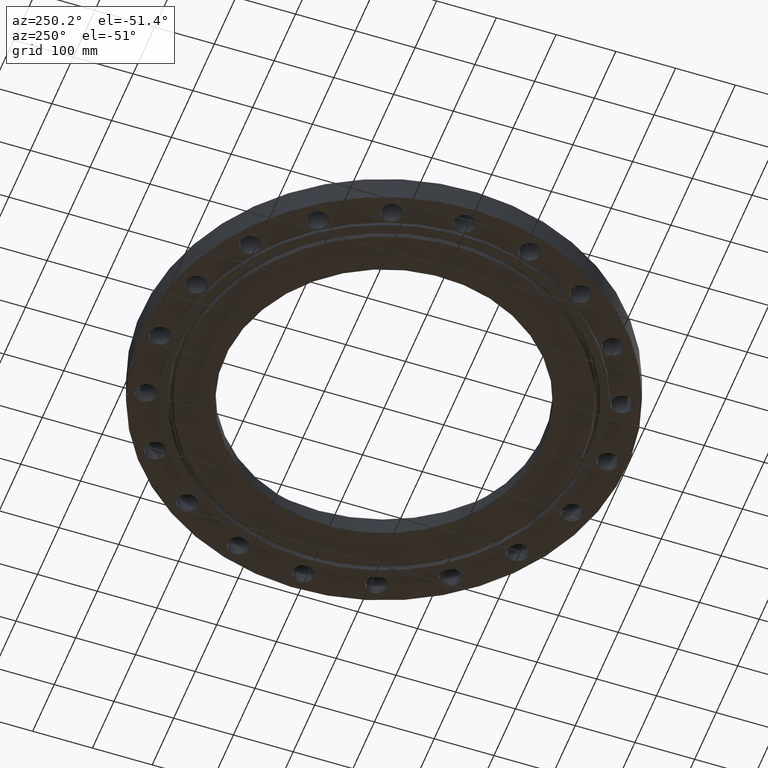
[diagram: clean part render]
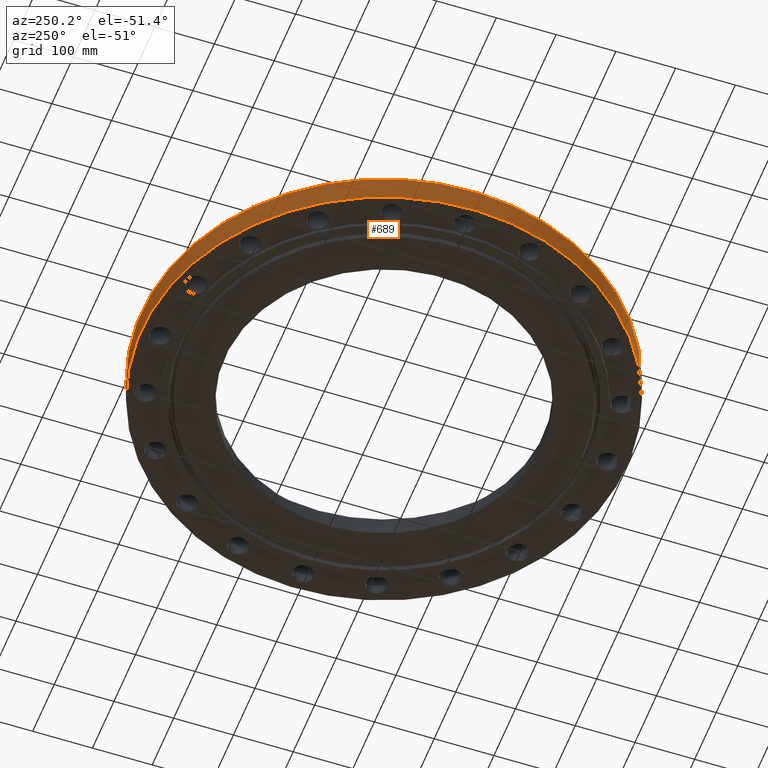
[diagram: same view with one face highlighted and labeled with its STEP entity id]
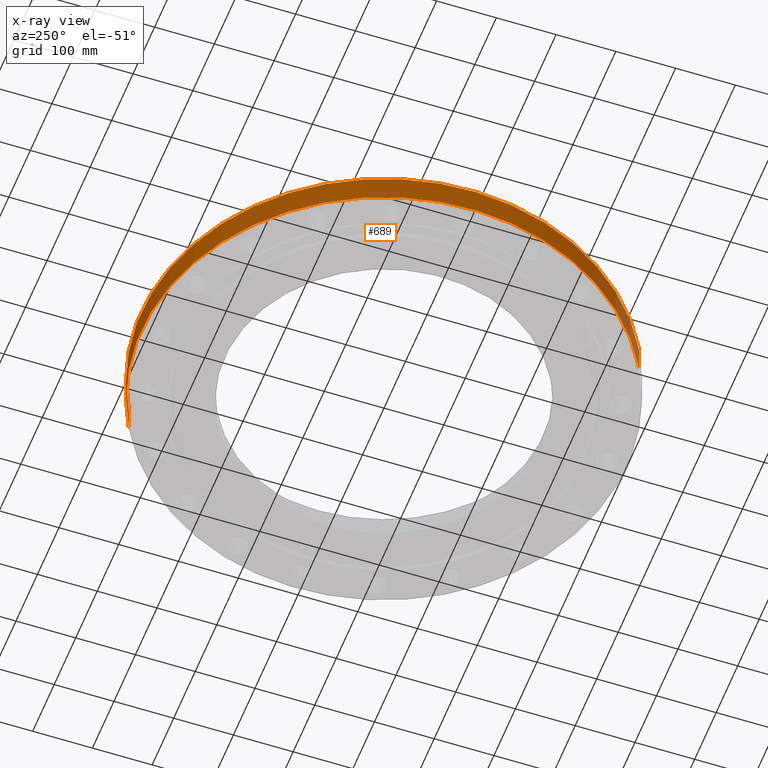
[diagram: x-ray of the same camera — body ghosted, the highlighted face saturated]
A machine part, auxiliary view. The second image highlights one B-rep face of the part: STEP entity #689.
The next image is the same camera in x-ray: the body ghosted, the highlighted face saturated — about 0% of this face is hidden behind the body in this view.
In plain terms, the highlighted cylindrical surface (partial cylindrical patch) has radius 406.4 mm, axis along (0, 0, -1).
Its self-contained STEP definition (entity closure, byte-faithful):
#278=AXIS2_PLACEMENT_3D('Circle Axis2P3D',#276,#277,$) ;
#662=AXIS2_PLACEMENT_3D('Cylinder Axis2P3D',#659,#660,#661) ;
#673=AXIS2_PLACEMENT_3D('Circle Axis2P3D',#671,#672,$) ;
#276=CARTESIAN_POINT('Axis2P3D Location',(0.,0.,0.)) ;
#280=CARTESIAN_POINT('Vertex',(-7.6708086177,-14.0413209903,1.67844740731E-015)) ;
#282=CARTESIAN_POINT('Vertex',(7.6708086177,14.0413209903,1.67844740731E-015)) ;
#659=CARTESIAN_POINT('Axis2P3D Location',(0.,0.,1.47000000001)) ;
#664=CARTESIAN_POINT('Line Origine',(-7.6708086177,-14.0413209903,0.905000000004)) ;
#668=CARTESIAN_POINT('Vertex',(-7.6708086177,-14.0413209903,1.81000000001)) ;
#671=CARTESIAN_POINT('Axis2P3D Location',(0.,0.,1.81000000001)) ;
#675=CARTESIAN_POINT('Vertex',(7.6708086177,14.0413209903,1.81000000001)) ;
#678=CARTESIAN_POINT('Line Origine',(7.6708086177,14.0413209903,0.905000000004)) ;
#277=DIRECTION('Axis2P3D Direction',(0.,0.,-0.0393700787402)) ;
#660=DIRECTION('Axis2P3D Direction',(0.,0.,-0.0393700787402)) ;
#661=DIRECTION('Axis2P3D XDirection',(0.0188750212049,0.0345504945626,0.)) ;
#665=DIRECTION('Vector Direction',(0.,0.,-0.0393700787402)) ;
#672=DIRECTION('Axis2P3D Direction',(0.,0.,-0.0393700787402)) ;
#679=DIRECTION('Vector Direction',(0.,0.,-0.0393700787402)) ;
#666=VECTOR('Line Direction',#665,0.0393700787402) ;
#680=VECTOR('Line Direction',#679,0.0393700787402) ;
#684=ORIENTED_EDGE('',*,*,#284,.F.) ;
#685=ORIENTED_EDGE('',*,*,#670,.T.) ;
#686=ORIENTED_EDGE('',*,*,#677,.T.) ;
#687=ORIENTED_EDGE('',*,*,#682,.F.) ;
#689=ADVANCED_FACE('PartBody',(#688),#663,.T.) ;
#279=CIRCLE('generated circle',#278,16.0000000001) ;
#674=CIRCLE('generated circle',#673,16.0000000001) ;
#663=CYLINDRICAL_SURFACE('generated cylinder',#662,16.0000000001) ;
#284=EDGE_CURVE('',#281,#283,#279,.T.) ;
#670=EDGE_CURVE('',#281,#669,#667,.F.) ;
#677=EDGE_CURVE('',#669,#676,#674,.T.) ;
#682=EDGE_CURVE('',#283,#676,#681,.F.) ;
#683=EDGE_LOOP('',(#684,#685,#686,#687)) ;
#688=FACE_OUTER_BOUND('',#683,.T.) ;
#667=LINE('Line',#664,#666) ;
#681=LINE('Line',#678,#680) ;
#281=VERTEX_POINT('',#280) ;
#283=VERTEX_POINT('',#282) ;
#669=VERTEX_POINT('',#668) ;
#676=VERTEX_POINT('',#675) ;